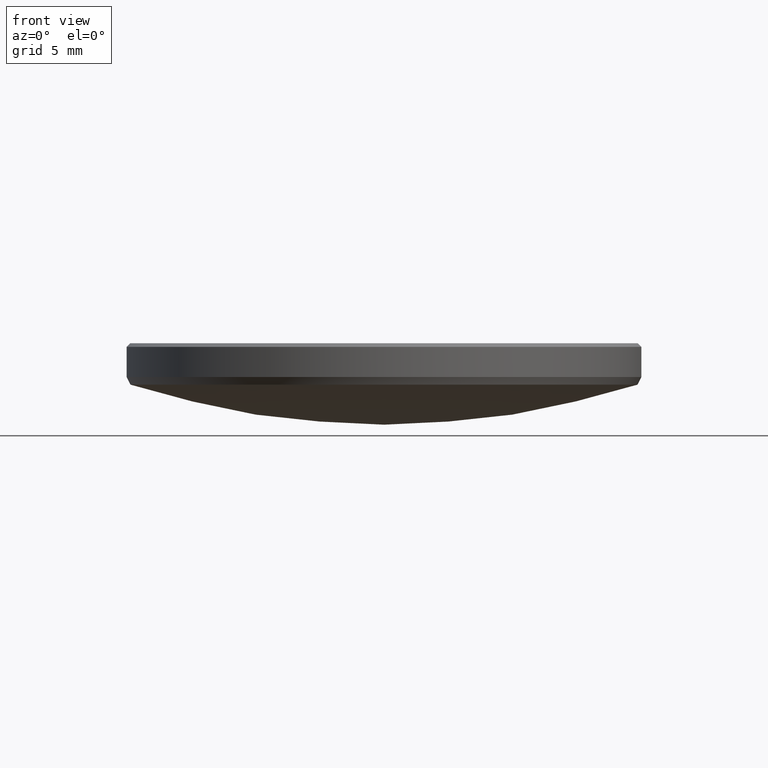
[diagram: clean part render]
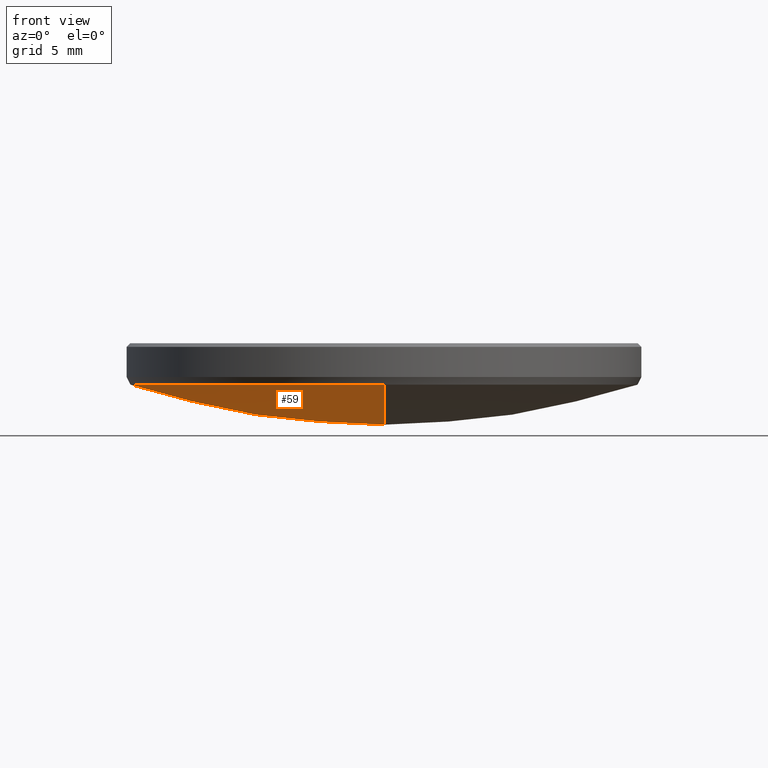
[diagram: same view with one face highlighted and labeled with its STEP entity id]
A machine part, front view. The second image highlights one B-rep face of the part: STEP entity #59.
In plain terms, the highlighted spherical surface has radius 40.6 mm.
Its self-contained STEP definition (entity closure, byte-faithful):
#7 = CARTESIAN_POINT ( 'NONE',  ( 0.000000000000000000, 0.000000000000000000, 42.56254659640620730 ) ) ;
#8 = AXIS2_PLACEMENT_3D ( 'NONE', #7, #35, #263 ) ;
#10 = DIRECTION ( 'NONE',  ( 1.000000000000000000, 0.000000000000000000, 0.000000000000000000 ) ) ;
#11 = CIRCLE ( 'NONE', #76, 40.59999999999999432 ) ;
#12 = CARTESIAN_POINT ( 'NONE',  ( 0.000000000000000000, 0.000000000000000000, 3.938057364562333351 ) ) ;
#14 = DIRECTION ( 'NONE',  ( 0.000000000000000000, 0.000000000000000000, -1.000000000000000000 ) ) ;
#17 = EDGE_CURVE ( 'NONE', #289, #114, #11, .T. ) ;
#31 = CARTESIAN_POINT ( 'NONE',  ( 0.000000000000000000, 0.000000000000000000, 42.56254659640620730 ) ) ;
#33 = DIRECTION ( 'NONE',  ( 0.000000000000000000, 0.000000000000000000, -1.000000000000000000 ) ) ;
#34 = ORIENTED_EDGE ( 'NONE', *, *, #285, .T. ) ;
#35 = DIRECTION ( 'NONE',  ( -1.000000000000000000, 0.000000000000000000, 0.000000000000000000 ) ) ;
#59 = ADVANCED_FACE ( 'NONE', ( #258 ), #80, .T. ) ;
#70 = VERTEX_POINT ( 'NONE', #140 ) ;
#76 = AXIS2_PLACEMENT_3D ( 'NONE', #181, #227, #137 ) ;
#79 = EDGE_CURVE ( 'NONE', #197, #114, #128, .T. ) ;
#80 = SPHERICAL_SURFACE ( 'NONE', #8, 40.59999999999999432 ) ;
#86 = CIRCLE ( 'NONE', #305, 12.51034897911231170 ) ;
#87 = EDGE_CURVE ( 'NONE', #289, #70, #266, .T. ) ;
#93 = CARTESIAN_POINT ( 'NONE',  ( -12.51034897911231170, 1.543688659132881617E-15, 3.938057364562333351 ) ) ;
#114 = VERTEX_POINT ( 'NONE', #115 ) ;
#115 = CARTESIAN_POINT ( 'NONE',  ( 0.000000000000000000, 12.51034897911230992, 3.938057364562333351 ) ) ;
#119 = DIRECTION ( 'NONE',  ( 1.000000000000000000, 0.000000000000000000, 0.000000000000000000 ) ) ;
#126 = ORIENTED_EDGE ( 'NONE', *, *, #17, .F. ) ;
#128 = CIRCLE ( 'NONE', #185, 12.51034897911231170 ) ;
#137 = DIRECTION ( 'NONE',  ( 0.000000000000000000, 0.000000000000000000, -1.000000000000000000 ) ) ;
#140 = CARTESIAN_POINT ( 'NONE',  ( -1.532075883348624801E-15, -12.51034897911230992, 3.938057364562333351 ) ) ;
#163 = DIRECTION ( 'NONE',  ( -1.000000000000000000, 1.224646799147353207E-16, 0.000000000000000000 ) ) ;
#174 = CARTESIAN_POINT ( 'NONE',  ( 0.000000000000000000, 2.486033002269126979E-15, 1.962546596406211652 ) ) ;
#175 = EDGE_LOOP ( 'NONE', ( #126, #210, #34, #177 ) ) ;
#177 = ORIENTED_EDGE ( 'NONE', *, *, #79, .T. ) ;
#181 = CARTESIAN_POINT ( 'NONE',  ( 0.000000000000000000, 0.000000000000000000, 42.56254659640620730 ) ) ;
#185 = AXIS2_PLACEMENT_3D ( 'NONE', #236, #33, #10 ) ;
#197 = VERTEX_POINT ( 'NONE', #93 ) ;
#210 = ORIENTED_EDGE ( 'NONE', *, *, #87, .T. ) ;
#227 = DIRECTION ( 'NONE',  ( 1.000000000000000000, -0.000000000000000000, 0.000000000000000000 ) ) ;
#236 = CARTESIAN_POINT ( 'NONE',  ( 0.000000000000000000, 0.000000000000000000, 3.938057364562333351 ) ) ;
#258 = FACE_OUTER_BOUND ( 'NONE', #175, .T. ) ;
#263 = DIRECTION ( 'NONE',  ( 0.000000000000000000, 1.000000000000000000, 0.000000000000000000 ) ) ;
#266 = CIRCLE ( 'NONE', #278, 40.59999999999999432 ) ;
#278 = AXIS2_PLACEMENT_3D ( 'NONE', #31, #163, #314 ) ;
#285 = EDGE_CURVE ( 'NONE', #70, #197, #86, .T. ) ;
#289 = VERTEX_POINT ( 'NONE', #174 ) ;
#305 = AXIS2_PLACEMENT_3D ( 'NONE', #12, #14, #119 ) ;
#314 = DIRECTION ( 'NONE',  ( -1.224646799147353454E-16, -1.000000000000000000, 0.000000000000000000 ) ) ;